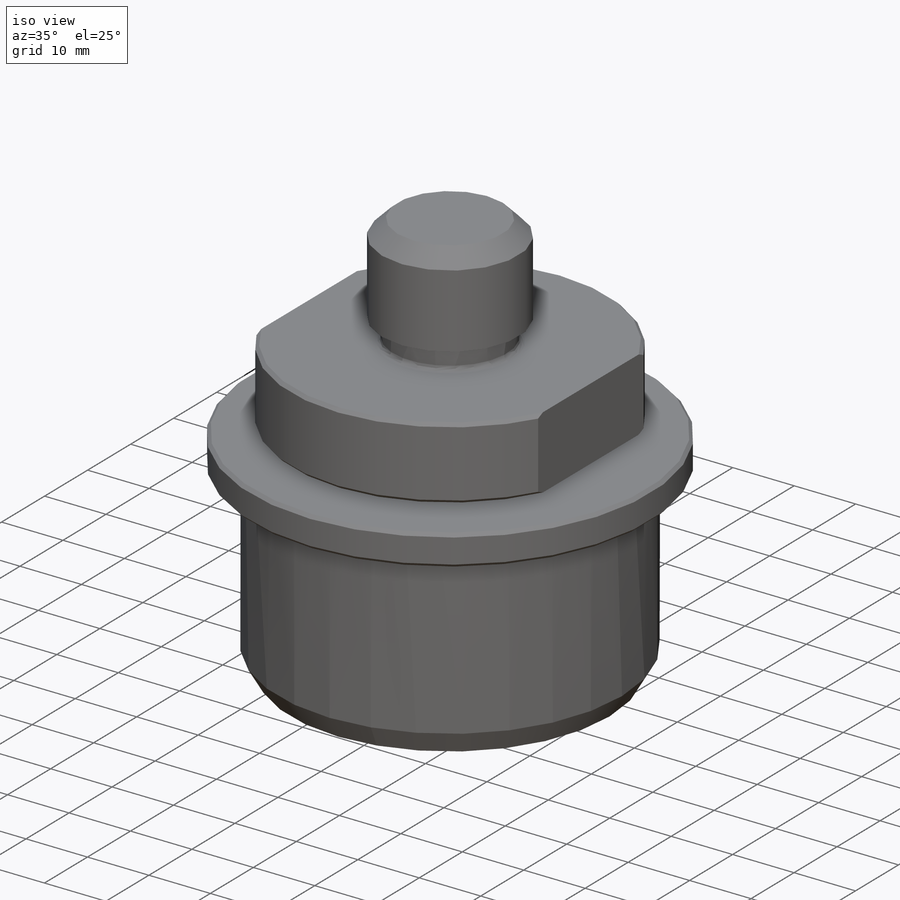
[diagram: iso view]
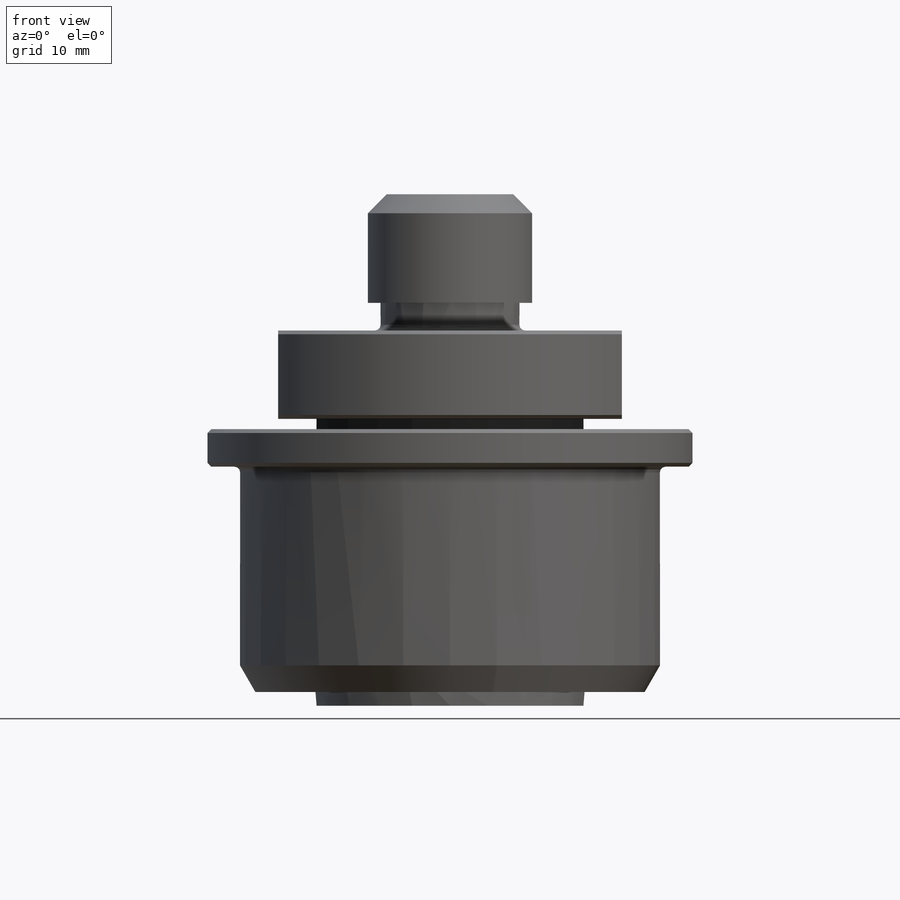
[diagram: front view]
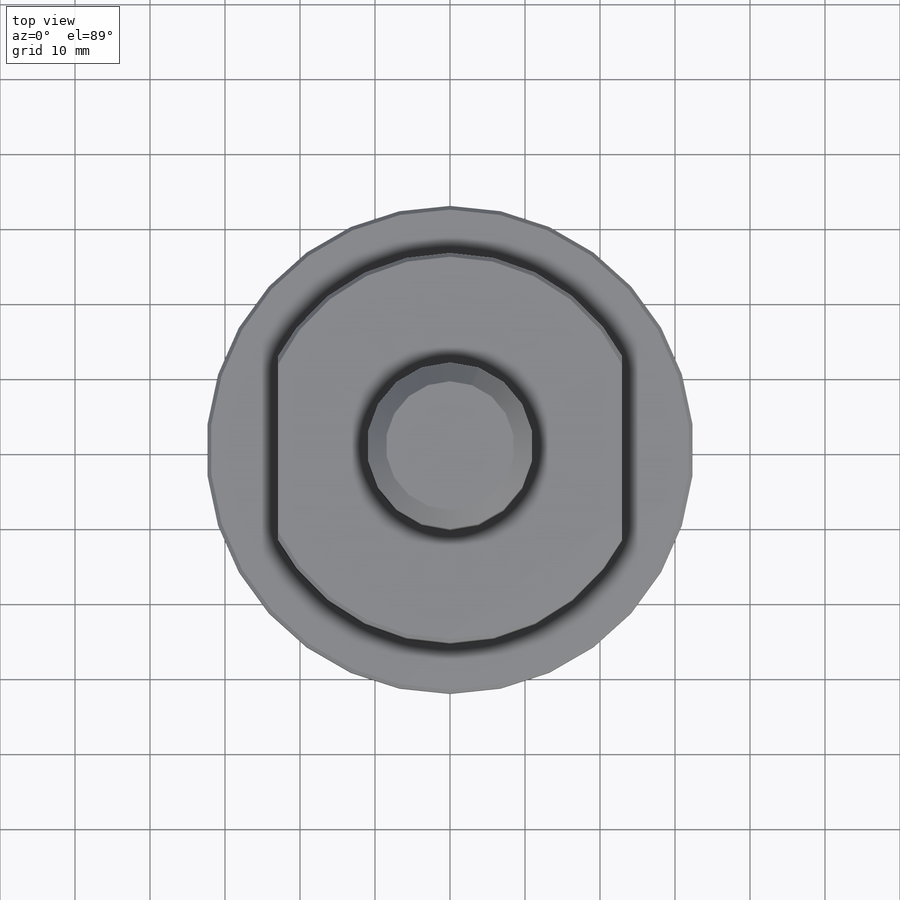
[diagram: top view]
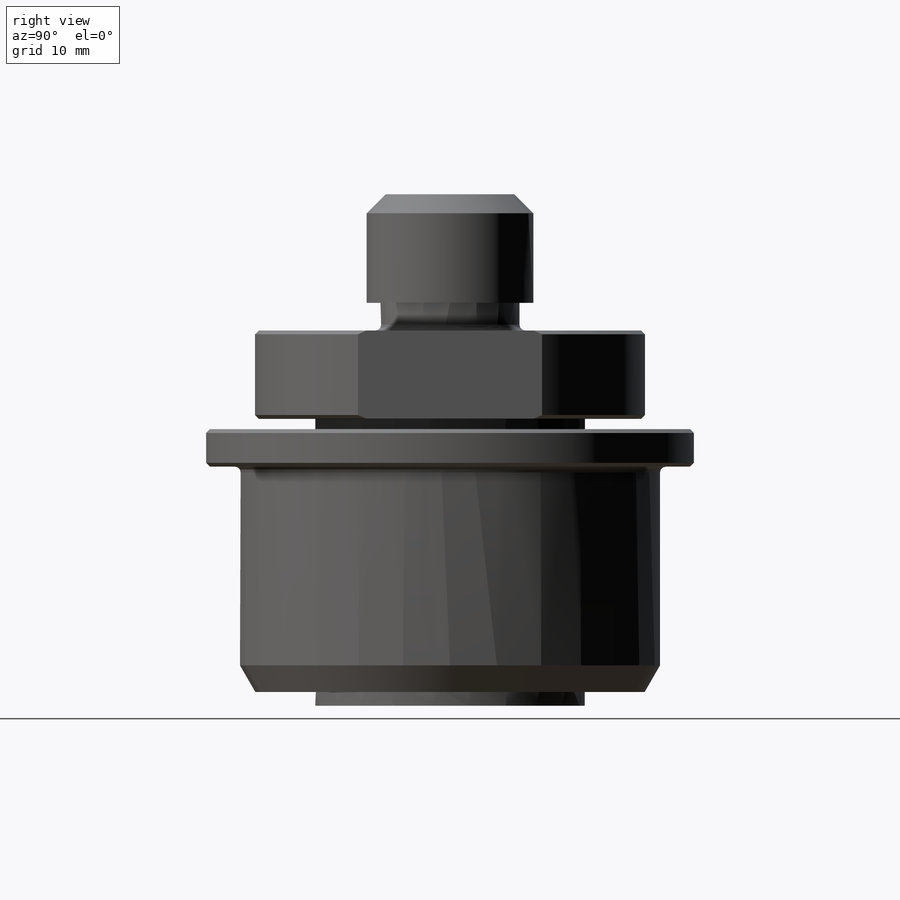
[diagram: right view]
SOLIDWORKS PART (.sldprt)
format: sldprt  version: not decoded by parser v0  size: 450,560 bytes
history: native  units: mm
features: sketch x4, revolve x3, chamfer x3, material x1, cut_extrude x1 (+13 scaffold rows collapsed)
feature tree (25):
  scaffold x13  (default folders/planes/origin — collapsed)
  material  "Material <not specified>"
  sketch  "Sketch1"  dims[c1.D14=1.27mm c1.D15=1.524mm c1.D16=0.762mm c1.D1=22.225mm c1.D2=18.161mm c1.D3=11.7856mm c1.D4=50.038mm c1.D5=35.941mm c1.D6=32.004mm c1.D7=3.683mm c1.D8=18.542mm c1.D9=25.2476mm c1.D10=7.874mm c1.D11=~0.856569mm c2.D11=45.0deg c2.D12=9.398mm c2.D13=7.493mm c2.D10=11.9126mm c3.D13=1.9304mm c3.D6=51.9938mm]
  revolve  "Revolve1"  Angle=360deg
  chamfer  "Chamfer1"  Distance=0.508mm Angle=45deg
  chamfer  "Chamfer2"  Distance=2.54mm Angle=45deg
  sketch  "Sketch4"  dims[D1=22.9235mm D2=22.9235mm]
  cut_extrude  "Cut-Extrude1"  [1 undecoded]
  sketch  "Sketch2"  dims[c1.D13=1.016mm c1.D14=0.762mm c1.D1=35.052mm c1.D2=5.0038mm c1.D3=56.007mm c1.D4=65.024mm c1.D5=3.556mm c1.D6=~6.064089mm c2.D6=30.0deg c2.D7=~51.900885mm c2.D8=18.161mm c2.D9=0.0508mm c2.D10=4.7498mm c2.D11=1.8288mm c2.D12=41.91mm]
  revolve  "Revolve2"  Angle=360deg
  chamfer  "Chamfer3"  Distance=0.508mm Angle=45deg
  sketch  "Sketch3"  dims[D1=0.0508mm]
  revolve  "Revolve3"  Angle=330deg
decode coverage: 10 of 11 modeling features carry decoded parameters
note: ~ marks probable driven/reference dimensions
note: 1 parameter value undecoded
note: suppression state not decoded; provenance and decode notes live in map.json
